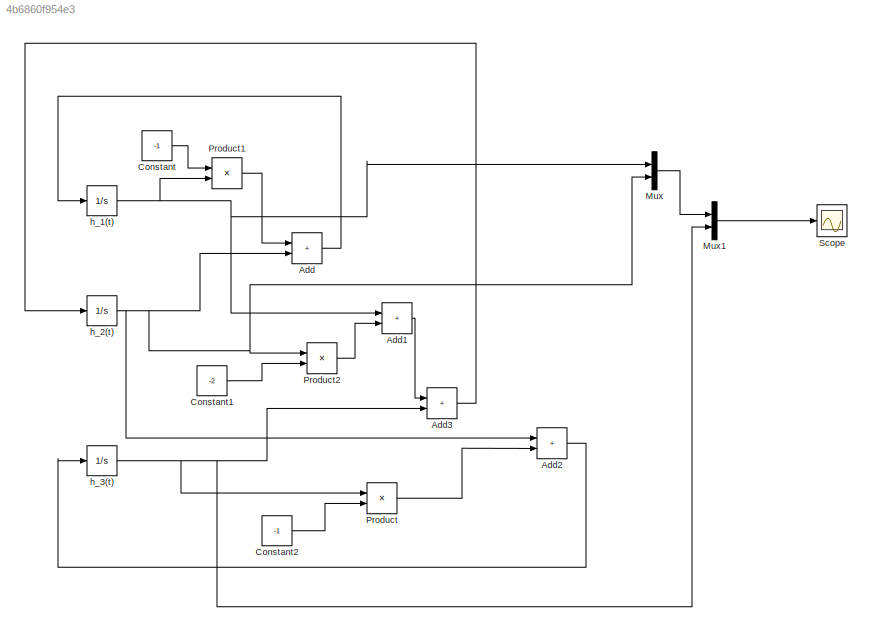
MODEL slx_4b6860f954e3
KIND model
CONFIG AbsTol = auto
CONFIG EnableMultiTasking = off
CONFIG FixedStep = auto
CONFIG MaxStep = auto
CONFIG MinStep = auto
CONFIG RelTol = 1e-3
CONFIG SampleTimeConstraint = Unconstrained
CONFIG Solver = VariableStepAuto
CONFIG SolverName = VariableStepAuto
CONFIG StartTime = 0.0
CONFIG StopTime = 5
BLOCK [Sum] Add
  IconShape = rectangular
  Ports = [2, 1]
BLOCK [Sum] Add1
  IconShape = rectangular
  Ports = [2, 1]
BLOCK [Sum] Add2
  IconShape = rectangular
  Ports = [2, 1]
BLOCK [Sum] Add3
  IconShape = rectangular
  Ports = [2, 1]
BLOCK [Constant] Constant
  Value = -1
BLOCK [Constant] Constant1
  Value = -2
BLOCK [Constant] Constant2
  Value = -1
BLOCK [Mux] Mux
  DisplayOption = bar
  Inputs = 2
  Ports = [2, 1]
BLOCK [Mux] Mux1
  DisplayOption = bar
  Inputs = 2
  Ports = [2, 1]
BLOCK [Product] Product
  Ports = [2, 1]
BLOCK [Product] Product1
  Ports = [2, 1]
BLOCK [Product] Product2
  Ports = [2, 1]
BLOCK [Scope] Scope
  Floating = off
  NumInputPorts = 1
  Ports = [1]
  ScopeSpecificationString = Simulink.scopes.TimeScopeBlockCfg('CurrentConfiguration', extmgr.ConfigurationSet(extmgr.Configuration('Core','General UI',true),extmgr.Configuration('Core','Source UI',true),extmgr.Configuration('Sources','WiredSimulink',true),extmgr.Configuration('Visuals','Time Domain',true,'SerializedDisplays',{struct('MinYLimReal','-0.12691','MaxYLimReal','2.14217','YLabelReal','','MinYLimMag','0.00000','MaxY...<+1415ch>
BLOCK [Integrator] h_1(t)
  InitialCondition = 0.2
  Ports = [1, 1]
BLOCK [Integrator] h_2(t)
  InitialCondition = 0.2
  Ports = [1, 1]
BLOCK [Integrator] h_3(t)
  InitialCondition = 0.1
  Ports = [1, 1]
LINE Add1:1 -> Add3:1
LINE Add2:1 -> h_3(t):1
LINE Add3:1 -> h_2(t):1
LINE Add:1 -> h_1(t):1
LINE Constant1:1 -> Product2:2
LINE Constant2:1 -> Product:2
LINE Constant:1 -> Product1:1
LINE Mux1:1 -> Scope:1
LINE Mux:1 -> Mux1:1
LINE Product1:1 -> Add:1
LINE Product2:1 -> Add1:2
LINE Product:1 -> Add2:2
NET h_1(t):1 -> Add1:1, Mux:1, Product1:2
NET h_2(t):1 -> Add2:1, Add:2, Mux:2, Product2:1
NET h_3(t):1 -> Add3:2, Mux1:2, Product:1
note: NET lines group one-source signal fan-out (src -> all destinations, sorted); 1:1 wires keep LINE
